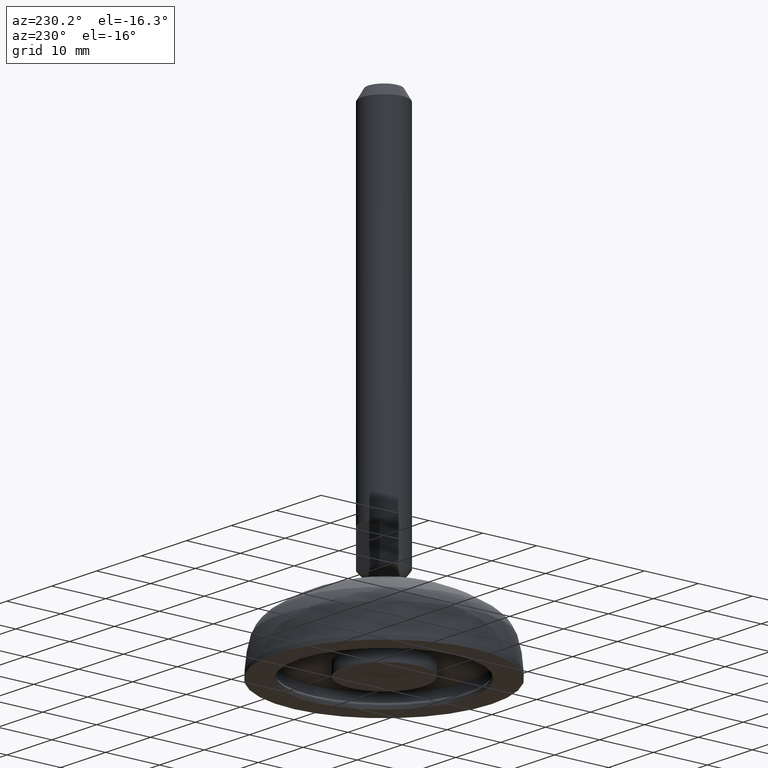
[diagram: clean part render]
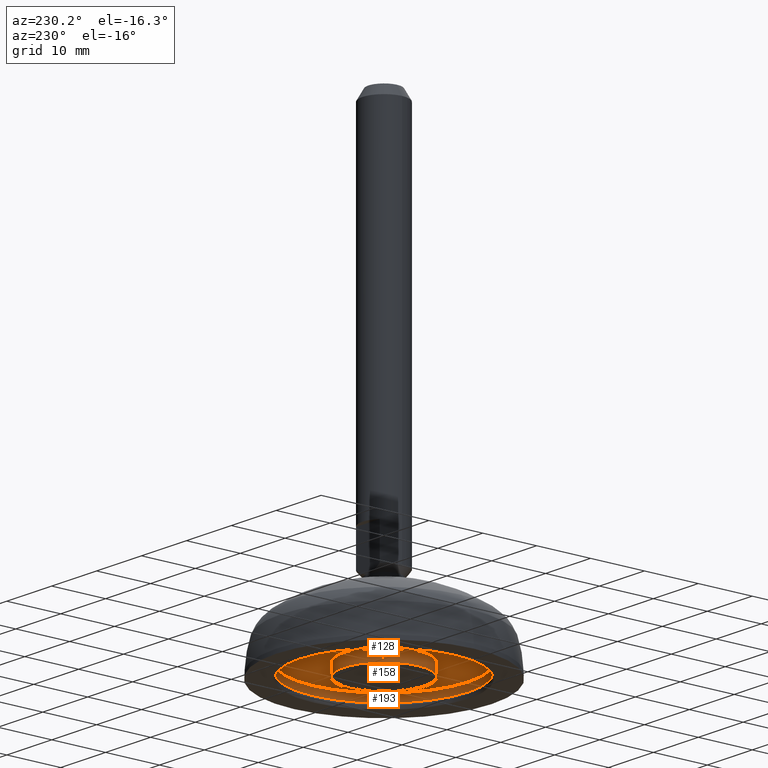
[diagram: same view with one multi-face feature highlighted, each face labeled with its STEP entity id]
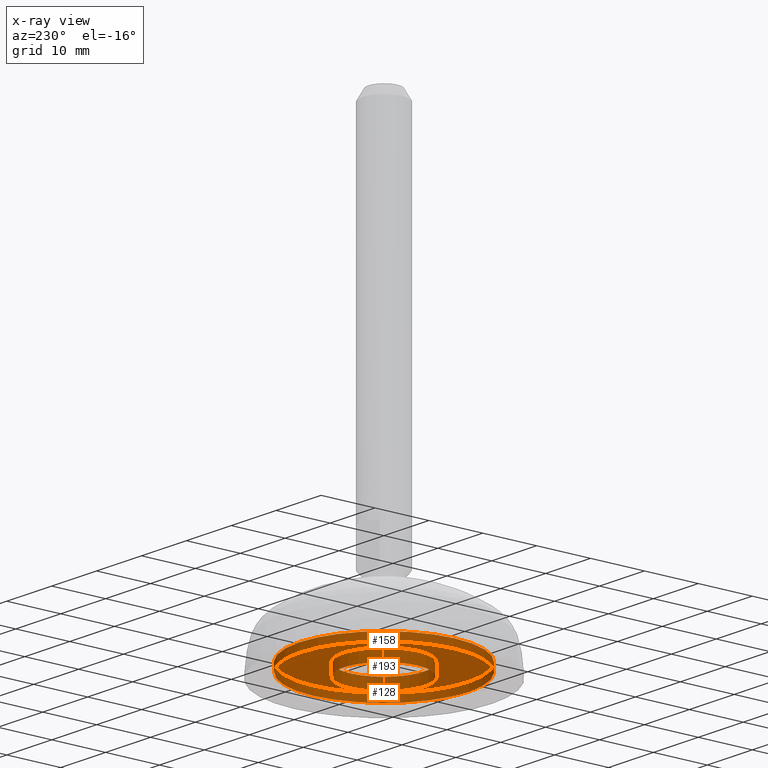
[diagram: x-ray of the same camera — body ghosted, the whole feature saturated]
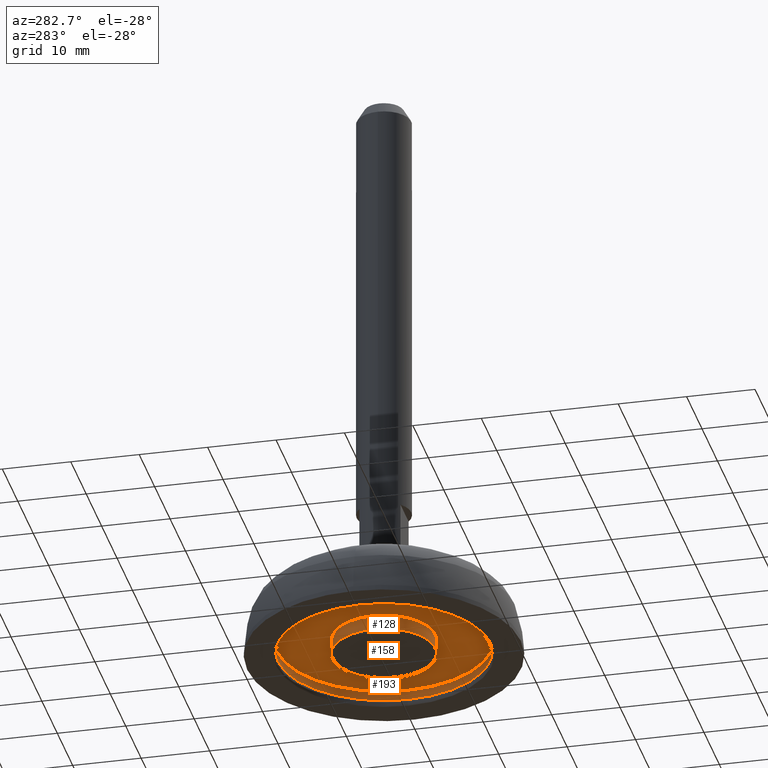
[diagram: same view with one multi-face feature highlighted, each face labeled with its STEP entity id]
A machine part, auxiliary view. The highlighted faces form ONE feature: a stepped (counterbored) hole: 2 coaxial cylindrical walls of radii 7.4963 -> 15.7 mm joined by 1 annular planar shoulder face(s). The faces share edges in the B-rep.
The next image is the same camera in x-ray: the body ghosted and the whole hole feature saturated, so the bore chain is visible through the body.
A second angle (auxiliary view) of the same feature is appended — it is thin or edge-on in the first view.
Their STEP definitions:
[1] entity #193 (Cylinder):
#134=CARTESIAN_POINT('',(-15.700001313207512,5.857621E-016,2.498732044627785));
#135=VERTEX_POINT('',#134);
#136=CARTESIAN_POINT('',(15.700001313207514,5.857621E-016,2.498732044627785));
#137=VERTEX_POINT('',#136);
#138=CARTESIAN_POINT('',(0.0,5.857621E-016,2.498732044627785));
#139=DIRECTION('',(0.0,0.0,1.0));
#140=DIRECTION('',(1.0,0.0,0.0));
#141=AXIS2_PLACEMENT_3D('',#138,#139,#140);
#142=CIRCLE('',#141,15.700001313207512);
#143=EDGE_CURVE('',#135,#137,#142,.T.);
#145=CARTESIAN_POINT('',(0.0,5.857621E-016,2.498732044627785));
#146=DIRECTION('',(0.0,0.0,1.0));
#147=DIRECTION('',(1.0,0.0,0.0));
#148=AXIS2_PLACEMENT_3D('',#145,#146,#147);
#149=CIRCLE('',#148,15.700001313207512);
#150=EDGE_CURVE('',#137,#135,#149,.T.);
#159=CARTESIAN_POINT('',(0.0,5.857621E-016,0.999988570769128));
#160=DIRECTION('',(0.0,0.0,1.0));
#161=DIRECTION('',(1.0,0.0,0.0));
#162=AXIS2_PLACEMENT_3D('',#159,#160,#161);
#163=CYLINDRICAL_SURFACE('',#162,15.700001313207512);
#164=CARTESIAN_POINT('',(-15.700001313207512,5.857621E-016,0.999988580769128));
#165=VERTEX_POINT('',#164);
#166=CARTESIAN_POINT('',(15.700001313207508,5.857621E-016,0.999988580769131));
#167=VERTEX_POINT('',#166);
#168=CARTESIAN_POINT('',(0.0,5.857621E-016,0.999988580769128));
#169=DIRECTION('',(0.0,0.0,1.0));
#170=DIRECTION('',(1.0,0.0,0.0));
#171=AXIS2_PLACEMENT_3D('',#168,#169,#170);
#172=CIRCLE('',#171,15.700001313207512);
#173=EDGE_CURVE('',#165,#167,#172,.T.);
#174=ORIENTED_EDGE('',*,*,#173,.F.);
#175=CARTESIAN_POINT('',(0.0,5.857621E-016,0.999988580769128));
#176=DIRECTION('',(0.0,0.0,1.0));
#177=DIRECTION('',(1.0,0.0,0.0));
#178=AXIS2_PLACEMENT_3D('',#175,#176,#177);
#179=CIRCLE('',#178,15.700001313207512);
#180=EDGE_CURVE('',#167,#165,#179,.T.);
#181=ORIENTED_EDGE('',*,*,#180,.F.);
#182=CARTESIAN_POINT('',(15.700001313207512,5.857621E-016,2.498732044627785));
#183=DIRECTION('',(0.0,0.0,-1.0));
#184=VECTOR('',#183,1.498743463858657);
#185=LINE('',#182,#184);
#186=EDGE_CURVE('',#137,#167,#185,.T.);
#187=ORIENTED_EDGE('',*,*,#186,.F.);
#188=ORIENTED_EDGE('',*,*,#150,.T.);
#189=ORIENTED_EDGE('',*,*,#143,.T.);
#190=ORIENTED_EDGE('',*,*,#186,.T.);
#191=EDGE_LOOP('',(#174,#181,#187,#188,#189,#190));
#192=FACE_OUTER_BOUND('',#191,.T.);
#193=ADVANCED_FACE('',(#192),#163,.F.);
[2] entity #128 (Cylinder):
#73=CARTESIAN_POINT('',(-7.496290594291281,5.857621E-016,0.299999999999841));
#74=VERTEX_POINT('',#73);
#75=CARTESIAN_POINT('',(7.496290594291281,5.857621E-016,0.299999999999841));
#76=VERTEX_POINT('',#75);
#77=CARTESIAN_POINT('',(0.0,5.857621E-016,0.299999999999841));
#78=DIRECTION('',(0.0,0.0,1.0));
#79=DIRECTION('',(1.0,0.0,0.0));
#80=AXIS2_PLACEMENT_3D('',#77,#78,#79);
#81=CIRCLE('',#80,7.496290594291281);
#82=EDGE_CURVE('',#74,#76,#81,.T.);
#84=CARTESIAN_POINT('',(0.0,5.857621E-016,0.299999999999841));
#85=DIRECTION('',(0.0,0.0,1.0));
#86=DIRECTION('',(1.0,0.0,0.0));
#87=AXIS2_PLACEMENT_3D('',#84,#85,#86);
#88=CIRCLE('',#87,7.496290594291281);
#89=EDGE_CURVE('',#76,#74,#88,.T.);
#94=CARTESIAN_POINT('',(0.0,5.857621E-016,0.299999989999841));
#95=DIRECTION('',(0.0,0.0,1.0));
#96=DIRECTION('',(1.0,0.0,0.0));
#97=AXIS2_PLACEMENT_3D('',#94,#95,#96);
#98=CYLINDRICAL_SURFACE('',#97,7.496290594291281);
#99=CARTESIAN_POINT('',(7.496290594291281,5.857621E-016,2.498732044627218));
#100=VERTEX_POINT('',#99);
#101=CARTESIAN_POINT('',(7.496290594291281,5.857621E-016,2.498732044627218));
#102=DIRECTION('',(0.0,0.0,-1.0));
#103=VECTOR('',#102,2.198732044627377);
#104=LINE('',#101,#103);
#105=EDGE_CURVE('',#100,#76,#104,.T.);
#106=ORIENTED_EDGE('',*,*,#105,.F.);
#107=CARTESIAN_POINT('',(-7.496290594291281,5.857621E-016,2.498732044627218));
#108=VERTEX_POINT('',#107);
#109=CARTESIAN_POINT('',(0.0,5.857621E-016,2.498732044627218));
#110=DIRECTION('',(0.0,0.0,1.0));
#111=DIRECTION('',(1.0,0.0,0.0));
#112=AXIS2_PLACEMENT_3D('',#109,#110,#111);
#113=CIRCLE('',#112,7.496290594291281);
#114=EDGE_CURVE('',#108,#100,#113,.T.);
#115=ORIENTED_EDGE('',*,*,#114,.F.);
#116=CARTESIAN_POINT('',(0.0,5.857621E-016,2.498732044627218));
#117=DIRECTION('',(0.0,0.0,1.0));
#118=DIRECTION('',(1.0,0.0,0.0));
#119=AXIS2_PLACEMENT_3D('',#116,#117,#118);
#120=CIRCLE('',#119,7.496290594291281);
#121=EDGE_CURVE('',#100,#108,#120,.T.);
#122=ORIENTED_EDGE('',*,*,#121,.F.);
#123=ORIENTED_EDGE('',*,*,#105,.T.);
#124=ORIENTED_EDGE('',*,*,#89,.T.);
#125=ORIENTED_EDGE('',*,*,#82,.T.);
#126=EDGE_LOOP('',(#106,#115,#122,#123,#124,#125));
#127=FACE_OUTER_BOUND('',#126,.T.);
#128=ADVANCED_FACE('',(#127),#98,.T.);
[3] entity #158 (Plane):
#99=CARTESIAN_POINT('',(7.496290594291281,5.857621E-016,2.498732044627218));
#100=VERTEX_POINT('',#99);
#107=CARTESIAN_POINT('',(-7.496290594291281,5.857621E-016,2.498732044627218));
#108=VERTEX_POINT('',#107);
#109=CARTESIAN_POINT('',(0.0,5.857621E-016,2.498732044627218));
#110=DIRECTION('',(0.0,0.0,1.0));
#111=DIRECTION('',(1.0,0.0,0.0));
#112=AXIS2_PLACEMENT_3D('',#109,#110,#111);
#113=CIRCLE('',#112,7.496290594291281);
#114=EDGE_CURVE('',#108,#100,#113,.T.);
#116=CARTESIAN_POINT('',(0.0,5.857621E-016,2.498732044627218));
#117=DIRECTION('',(0.0,0.0,1.0));
#118=DIRECTION('',(1.0,0.0,0.0));
#119=AXIS2_PLACEMENT_3D('',#116,#117,#118);
#120=CIRCLE('',#119,7.496290594291281);
#121=EDGE_CURVE('',#100,#108,#120,.T.);
#129=CARTESIAN_POINT('',(17.270001444528262,-17.270001444528262,2.498732044627502));
#130=DIRECTION('',(0.0,0.0,-1.0));
#131=DIRECTION('',(-1.0,0.0,0.0));
#132=AXIS2_PLACEMENT_3D('',#129,#130,#131);
#133=PLANE('',#132);
#134=CARTESIAN_POINT('',(-15.700001313207512,5.857621E-016,2.498732044627785));
#135=VERTEX_POINT('',#134);
#136=CARTESIAN_POINT('',(15.700001313207514,5.857621E-016,2.498732044627785));
#137=VERTEX_POINT('',#136);
#138=CARTESIAN_POINT('',(0.0,5.857621E-016,2.498732044627785));
#139=DIRECTION('',(0.0,0.0,1.0));
#140=DIRECTION('',(1.0,0.0,0.0));
#141=AXIS2_PLACEMENT_3D('',#138,#139,#140);
#142=CIRCLE('',#141,15.700001313207512);
#143=EDGE_CURVE('',#135,#137,#142,.T.);
#144=ORIENTED_EDGE('',*,*,#143,.F.);
#145=CARTESIAN_POINT('',(0.0,5.857621E-016,2.498732044627785));
#146=DIRECTION('',(0.0,0.0,1.0));
#147=DIRECTION('',(1.0,0.0,0.0));
#148=AXIS2_PLACEMENT_3D('',#145,#146,#147);
#149=CIRCLE('',#148,15.700001313207512);
#150=EDGE_CURVE('',#137,#135,#149,.T.);
#151=ORIENTED_EDGE('',*,*,#150,.F.);
#152=EDGE_LOOP('',(#144,#151));
#153=FACE_OUTER_BOUND('',#152,.T.);
#154=ORIENTED_EDGE('',*,*,#121,.T.);
#155=ORIENTED_EDGE('',*,*,#114,.T.);
#156=EDGE_LOOP('',(#154,#155));
#157=FACE_BOUND('',#156,.T.);
#158=ADVANCED_FACE('',(#153,#157),#133,.T.);